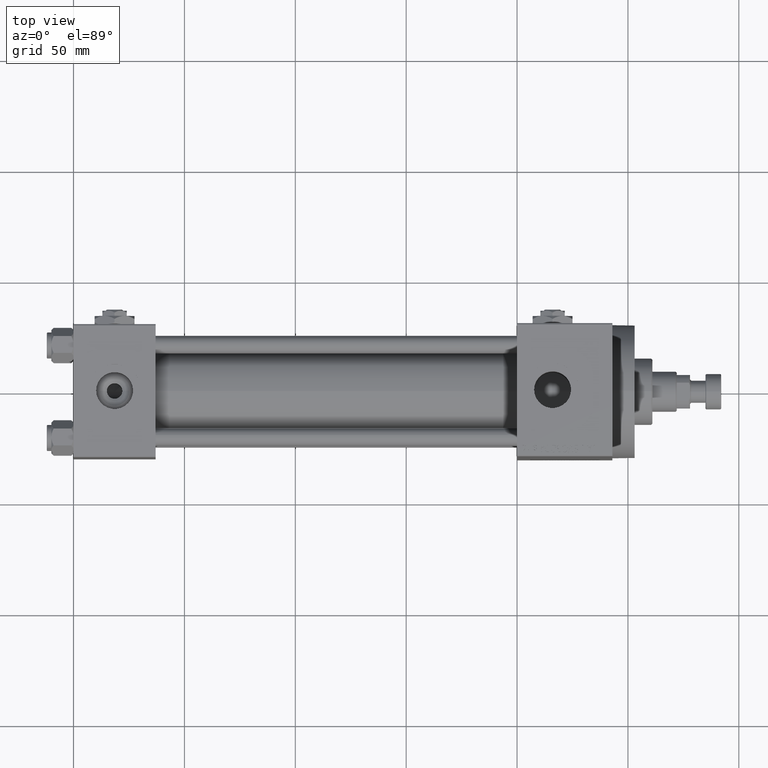
[diagram: clean part render]
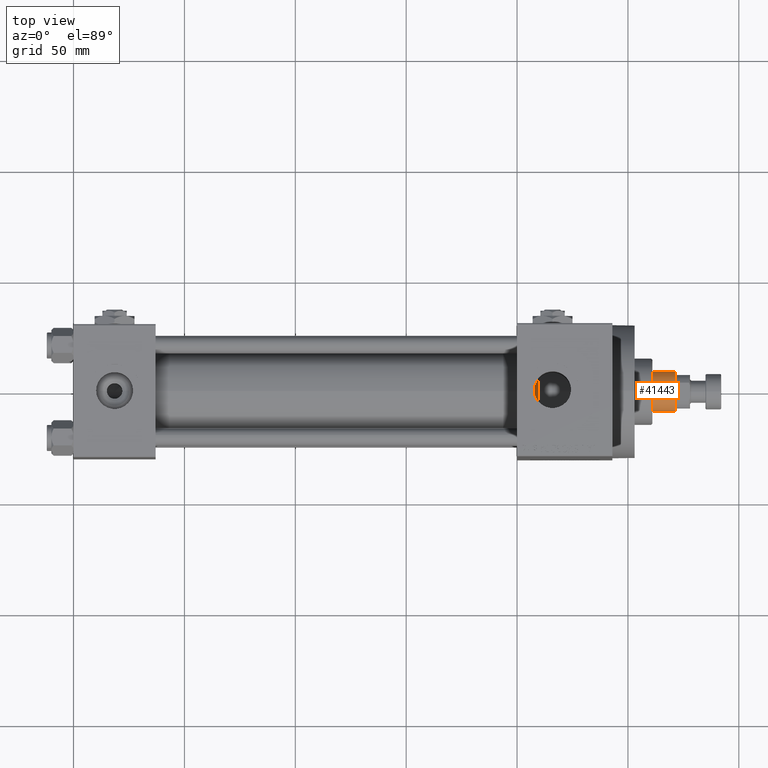
[diagram: same view with one face highlighted and labeled with its STEP entity id]
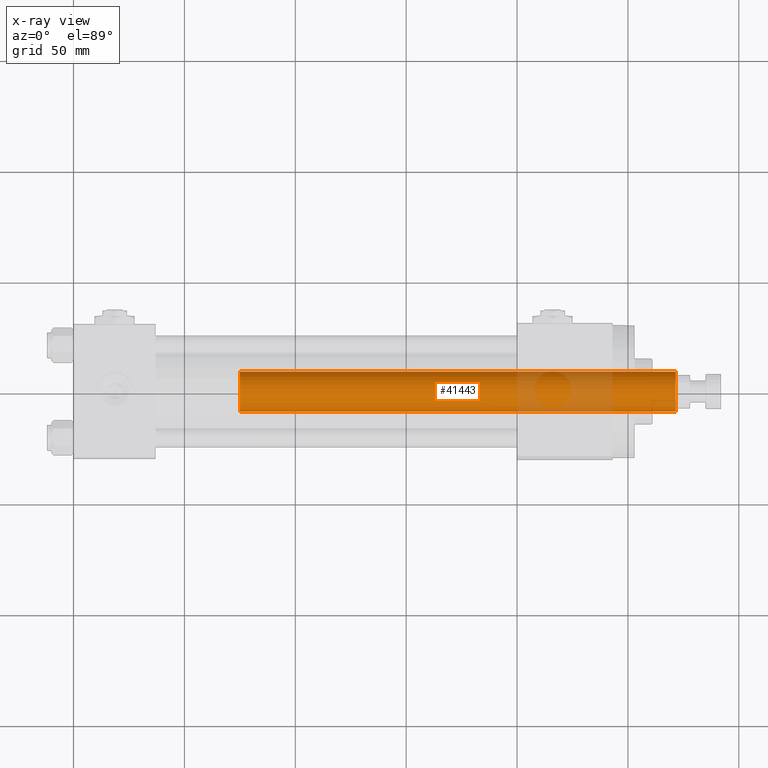
[diagram: x-ray of the same camera — body ghosted, the highlighted face saturated]
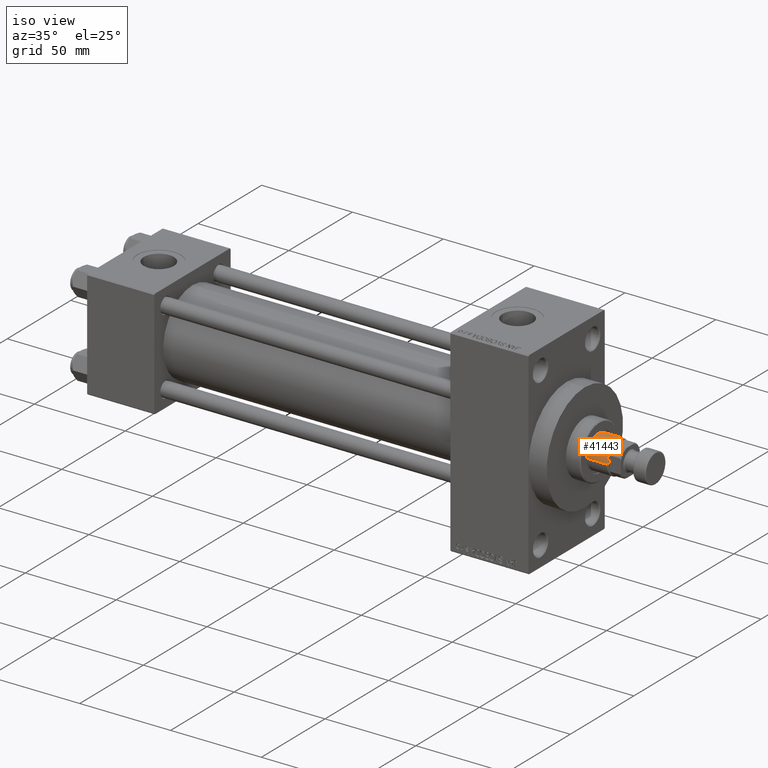
[diagram: same view with one face highlighted and labeled with its STEP entity id]
A machine part, top view. The second image highlights one B-rep face of the part: STEP entity #41443.
The next image is the same camera in x-ray: the body ghosted, the highlighted face saturated — about 16% of this face is hidden behind the body in this view.
A second angle (iso view) of the same face is appended — the face is thin or edge-on in the first view.
In plain terms, the highlighted cylindrical surface (edge-blend (fillet) strip) has radius 9 mm, axis along (-1, 0, 0).
Its self-contained STEP definition (entity closure, byte-faithful):
#1114 = VERTEX_POINT ( 'NONE', #31716 ) ;
#5202 = AXIS2_PLACEMENT_3D ( 'NONE', #23462, #41599, #11908 ) ;
#5218 = EDGE_CURVE ( 'NONE', #35242, #22508, #47455, .T. ) ;
#7664 = EDGE_CURVE ( 'NONE', #1114, #41703, #38922, .T. ) ;
#9201 = ORIENTED_EDGE ( 'NONE', *, *, #5218, .T. ) ;
#11307 = CARTESIAN_POINT ( 'NONE',  ( -9.000000000000000000, 0.000000000000000000, 38.00000000000000000 ) ) ;
#11908 = DIRECTION ( 'NONE',  ( 1.000000000000000000, 0.000000000000000000, 0.000000000000000000 ) ) ;
#12354 = EDGE_CURVE ( 'NONE', #1114, #35242, #34116, .T. ) ;
#12447 = DIRECTION ( 'NONE',  ( 1.000000000000000000, 0.000000000000000000, 0.000000000000000000 ) ) ;
#13778 = VECTOR ( 'NONE', #17025, 1000.000000000000000 ) ;
#14265 = ORIENTED_EDGE ( 'NONE', *, *, #12354, .T. ) ;
#15632 = AXIS2_PLACEMENT_3D ( 'NONE', #19733, #46893, #12447 ) ;
#17025 = DIRECTION ( 'NONE',  ( -0.000000000000000000, -0.000000000000000000, -1.000000000000000000 ) ) ;
#19258 = CARTESIAN_POINT ( 'NONE',  ( 0.000000000000000000, 0.000000000000000000, 235.0000000000000284 ) ) ;
#19646 = CIRCLE ( 'NONE', #15632, 9.000000000000000000 ) ;
#19733 = CARTESIAN_POINT ( 'NONE',  ( 0.000000000000000000, 0.000000000000000000, 38.00000000000000000 ) ) ;
#19788 = CARTESIAN_POINT ( 'NONE',  ( 9.000000000000000000, 1.102182119232617714E-15, 235.0000000000000284 ) ) ;
#20545 = CARTESIAN_POINT ( 'NONE',  ( -9.000000000000000000, 0.000000000000000000, 235.0000000000000284 ) ) ;
#22508 = VERTEX_POINT ( 'NONE', #11307 ) ;
#23215 = AXIS2_PLACEMENT_3D ( 'NONE', #19258, #23526, #41917 ) ;
#23462 = CARTESIAN_POINT ( 'NONE',  ( 0.000000000000000000, 0.000000000000000000, 234.5000000000000000 ) ) ;
#23526 = DIRECTION ( 'NONE',  ( -0.000000000000000000, -0.000000000000000000, -1.000000000000000000 ) ) ;
#24763 = EDGE_LOOP ( 'NONE', ( #42751, #14265, #9201, #40263 ) ) ;
#26545 = CYLINDRICAL_SURFACE ( 'NONE', #23215, 9.000000000000000000 ) ;
#31592 = DIRECTION ( 'NONE',  ( -0.000000000000000000, -0.000000000000000000, -1.000000000000000000 ) ) ;
#31684 = CARTESIAN_POINT ( 'NONE',  ( 9.000000000000000000, 1.102182119232617714E-15, 38.00000000000000000 ) ) ;
#31716 = CARTESIAN_POINT ( 'NONE',  ( 9.000000000000000000, 1.102182119232617714E-15, 234.5000000000000000 ) ) ;
#31779 = CARTESIAN_POINT ( 'NONE',  ( -9.000000000000000000, 0.000000000000000000, 234.5000000000000000 ) ) ;
#34116 = CIRCLE ( 'NONE', #5202, 9.000000000000000000 ) ;
#35231 = EDGE_CURVE ( 'NONE', #22508, #41703, #19646, .T. ) ;
#35242 = VERTEX_POINT ( 'NONE', #31779 ) ;
#38382 = FACE_OUTER_BOUND ( 'NONE', #24763, .T. ) ;
#38922 = LINE ( 'NONE', #19788, #41976 ) ;
#40263 = ORIENTED_EDGE ( 'NONE', *, *, #35231, .T. ) ;
#41443 = ADVANCED_FACE ( 'NONE', ( #38382 ), #26545, .T. ) ;
#41599 = DIRECTION ( 'NONE',  ( 0.000000000000000000, 0.000000000000000000, -1.000000000000000000 ) ) ;
#41703 = VERTEX_POINT ( 'NONE', #31684 ) ;
#41917 = DIRECTION ( 'NONE',  ( -1.000000000000000000, 0.000000000000000000, 0.000000000000000000 ) ) ;
#41976 = VECTOR ( 'NONE', #31592, 1000.000000000000000 ) ;
#42751 = ORIENTED_EDGE ( 'NONE', *, *, #7664, .F. ) ;
#46893 = DIRECTION ( 'NONE',  ( 0.000000000000000000, 0.000000000000000000, 1.000000000000000000 ) ) ;
#47455 = LINE ( 'NONE', #20545, #13778 ) ;